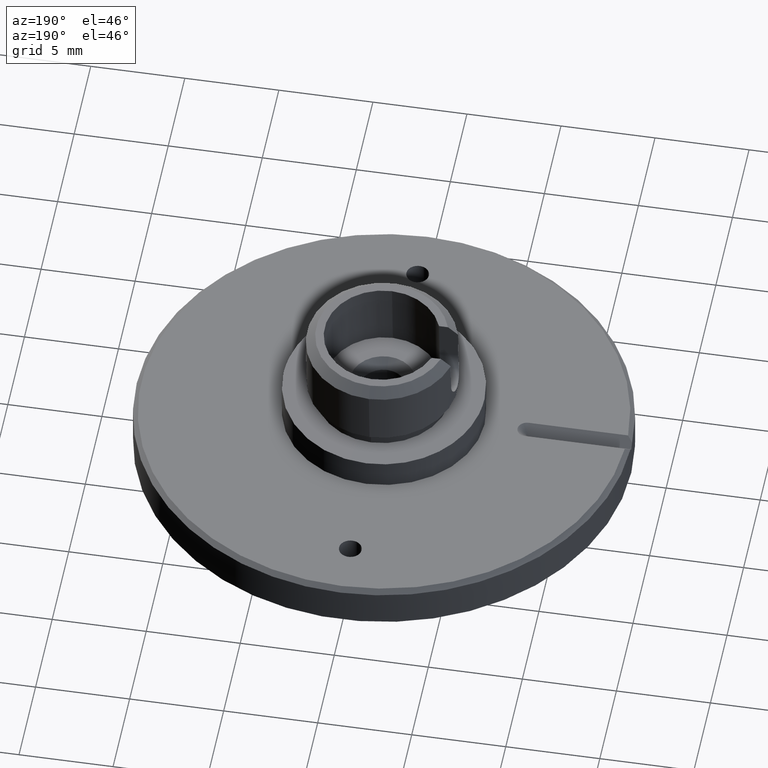
[diagram: clean part render]
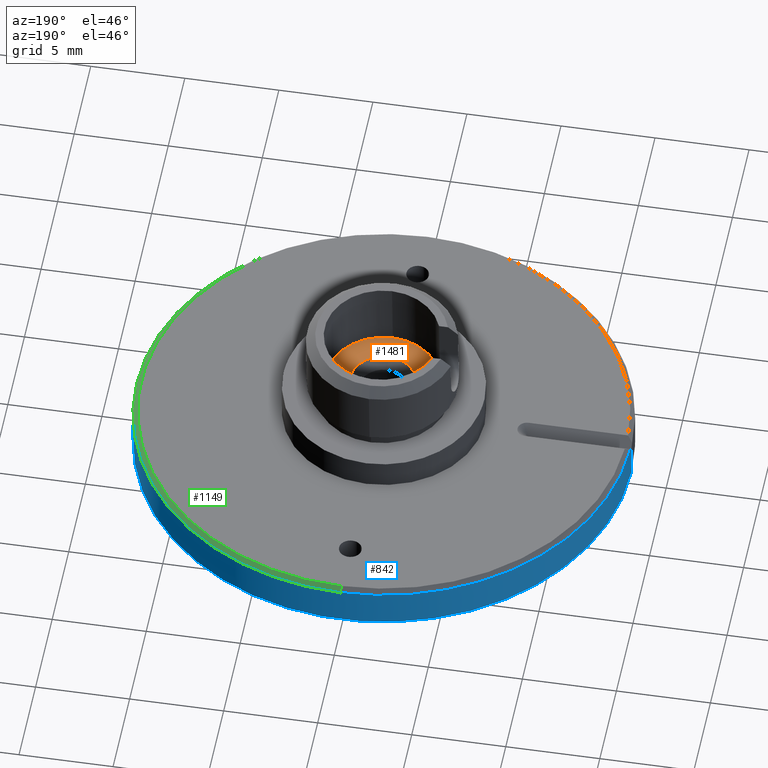
[diagram: same view with three faces highlighted in distinct colors, each labeled with its STEP entity id]
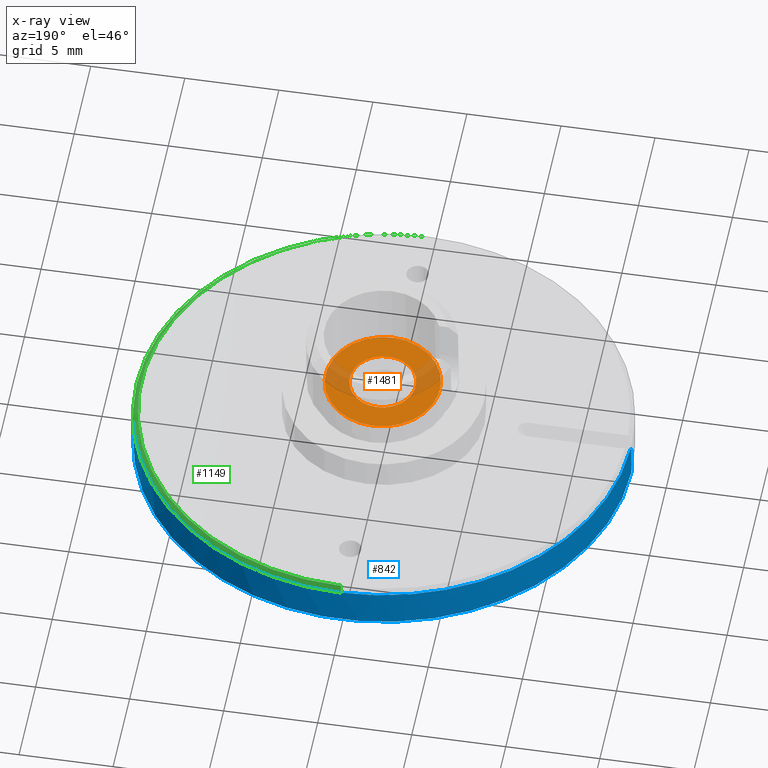
[diagram: x-ray of the same camera — body ghosted, the three highlighted faces saturated]
A machine part, auxiliary view with three faces highlighted in distinct colors.
The next image is the same camera in x-ray (body ghosted, the three faces saturated) — at least one of them is partly hidden behind the body in this view.
Their STEP definitions:

[orange] entity #1481 — the highlighted planar face has unit normal (-0, 0.0706, 0.9975).
#20 = CARTESIAN_POINT ( 'NONE',  ( -1.531478631540817406E-18, 0.3609151309933772422, 5.097397940602025557 ) ) ;
#79 = EDGE_CURVE ( 'NONE', #1616, #1191, #1095, .T. ) ;
#109 = CARTESIAN_POINT ( 'NONE',  ( 2.127817112517698005E-16, 2.106545024986783865, 4.973800715204018452 ) ) ;
#130 = CARTESIAN_POINT ( 'NONE',  ( -1.531478631540816058E-18, -1.384714763000028936, 5.220995166000033549 ) ) ;
#165 = DIRECTION ( 'NONE',  ( -0.000000000000000000, 0.07062698584061041784, 0.9975027964226818034 ) ) ;
#181 = AXIS2_PLACEMENT_3D ( 'NONE', #20, #1061, #1223 ) ;
#299 = FACE_BOUND ( 'NONE', #1338, .T. ) ;
#337 = CARTESIAN_POINT ( 'NONE',  ( 0.000000000000000000, -2.681468397756638478, 5.312810247982767464 ) ) ;
#466 = AXIS2_PLACEMENT_3D ( 'NONE', #1332, #1324, #776 ) ;
#470 = CIRCLE ( 'NONE', #1454, 1.750000000265576672 ) ;
#495 = CARTESIAN_POINT ( 'NONE',  ( -1.531478631540817406E-18, 0.3609151309933772422, 5.097397940602025557 ) ) ;
#577 = FACE_OUTER_BOUND ( 'NONE', #1478, .T. ) ;
#607 = EDGE_CURVE ( 'NONE', #1727, #737, #1123, .T. ) ;
#638 = DIRECTION ( 'NONE',  ( -3.062957264470169057E-18, 0.07062698593100009969, 0.9975027964162820338 ) ) ;
#702 = EDGE_CURVE ( 'NONE', #1191, #1616, #1399, .T. ) ;
#714 = DIRECTION ( 'NONE',  ( 0.000000000000000000, -0.9975027964226816923, 0.07062698584061040397 ) ) ;
#737 = VERTEX_POINT ( 'NONE', #130 ) ;
#741 = CARTESIAN_POINT ( 'NONE',  ( -3.086599999999999788, 3.439807262999999615, 4.879400686000000320 ) ) ;
#776 = DIRECTION ( 'NONE',  ( 0.000000000000000000, -0.9975027964162804794, 0.07062698593101955635 ) ) ;
#816 = ORIENTED_EDGE ( 'NONE', *, *, #607, .F. ) ;
#850 = PLANE ( 'NONE',  #1516 ) ;
#855 = EDGE_CURVE ( 'NONE', #737, #1727, #470, .T. ) ;
#871 = CARTESIAN_POINT ( 'NONE',  ( 0.000000000000000000, 0.3609151309940342722, 5.097397940915742609 ) ) ;
#1006 = AXIS2_PLACEMENT_3D ( 'NONE', #871, #1272, #1393 ) ;
#1028 = ORIENTED_EDGE ( 'NONE', *, *, #702, .T. ) ;
#1061 = DIRECTION ( 'NONE',  ( -3.062957264470169057E-18, 0.07062698593100009969, 0.9975027964162820338 ) ) ;
#1095 = CIRCLE ( 'NONE', #466, 3.049999999680218732 ) ;
#1123 = CIRCLE ( 'NONE', #181, 1.750000000265576672 ) ;
#1191 = VERTEX_POINT ( 'NONE', #1363 ) ;
#1223 = DIRECTION ( 'NONE',  ( 0.000000000000000000, -0.9975027964162818117, 0.07062698593100015521 ) ) ;
#1272 = DIRECTION ( 'NONE',  ( -0.000000000000000000, 0.07062698593101959799, 0.9975027964162804794 ) ) ;
#1324 = DIRECTION ( 'NONE',  ( -0.000000000000000000, 0.07062698593101959799, 0.9975027964162804794 ) ) ;
#1332 = CARTESIAN_POINT ( 'NONE',  ( 0.000000000000000000, 0.3609151309940342722, 5.097397940915742609 ) ) ;
#1338 = EDGE_LOOP ( 'NONE', ( #1738, #816 ) ) ;
#1363 = CARTESIAN_POINT ( 'NONE',  ( 3.735172737007807997E-16, 3.403298659744706800, 4.881985633848718642 ) ) ;
#1393 = DIRECTION ( 'NONE',  ( 0.000000000000000000, -0.9975027964162804794, 0.07062698593101955635 ) ) ;
#1399 = CIRCLE ( 'NONE', #1006, 3.049999999680218732 ) ;
#1446 = DIRECTION ( 'NONE',  ( 0.000000000000000000, -0.9975027964162818117, 0.07062698593100015521 ) ) ;
#1454 = AXIS2_PLACEMENT_3D ( 'NONE', #495, #638, #1446 ) ;
#1478 = EDGE_LOOP ( 'NONE', ( #1521, #1028 ) ) ;
#1481 = ADVANCED_FACE ( 'NONE', ( #299, #577 ), #850, .T. ) ;
#1516 = AXIS2_PLACEMENT_3D ( 'NONE', #741, #165, #714 ) ;
#1521 = ORIENTED_EDGE ( 'NONE', *, *, #79, .T. ) ;
#1616 = VERTEX_POINT ( 'NONE', #337 ) ;
#1727 = VERTEX_POINT ( 'NONE', #109 ) ;
#1738 = ORIENTED_EDGE ( 'NONE', *, *, #855, .F. ) ;

[blue] entity #842 — the highlighted cylindrical surface (partial cylindrical patch) has radius 13.15 mm, axis along (0, 0, -1).
#8 = CIRCLE ( 'NONE', #730, 13.15000000000000036 ) ;
#28 = CARTESIAN_POINT ( 'NONE',  ( 13.15000000000000036, 1.610410540878769328E-15, 2.250000000000000444 ) ) ;
#48 = DIRECTION ( 'NONE',  ( 0.000000000000000000, 0.000000000000000000, -1.000000000000000000 ) ) ;
#49 = CARTESIAN_POINT ( 'NONE',  ( -13.14999998098859635, 0.001000000000000066157, 2.000999999999999890 ) ) ;
#81 = FACE_OUTER_BOUND ( 'NONE', #260, .T. ) ;
#142 = CARTESIAN_POINT ( 'NONE',  ( -13.14999998098859635, 0.001000000000000066157, 2.000999999999999890 ) ) ;
#144 = CARTESIAN_POINT ( 'NONE',  ( 13.15000000000000036, 1.610410540878769328E-15, 2.250000000000000444 ) ) ;
#195 = CARTESIAN_POINT ( 'NONE',  ( -13.14762335940779536, 0.2499999983088841138, 2.250000000000000444 ) ) ;
#241 = CARTESIAN_POINT ( 'NONE',  ( 0.000000000000000000, 13.15000000000000036, 2.250000000000000444 ) ) ;
#260 = EDGE_LOOP ( 'NONE', ( #756, #810, #688, #612, #1096, #992, #642 ) ) ;
#270 = DIRECTION ( 'NONE',  ( -1.000000000000000000, 8.881784197001252323E-16, 0.000000000000000000 ) ) ;
#273 = EDGE_CURVE ( 'NONE', #1297, #1233, #8, .T. ) ;
#281 = CARTESIAN_POINT ( 'NONE',  ( -13.14920142517864399, 0.1670087404623048777, 2.167008740462303962 ) ) ;
#353 = DIRECTION ( 'NONE',  ( 1.000000000000000000, 0.000000000000000000, 2.094200394002419040E-15 ) ) ;
#386 = VERTEX_POINT ( 'NONE', #195 ) ;
#389 = CARTESIAN_POINT ( 'NONE',  ( -13.15000000000000036, 0.000000000000000000, 2.250000000000000444 ) ) ;
#399 = VERTEX_POINT ( 'NONE', #1396 ) ;
#410 = VERTEX_POINT ( 'NONE', #49 ) ;
#425 = DIRECTION ( 'NONE',  ( -0.000000000000000000, -0.000000000000000000, 1.000000000000000000 ) ) ;
#513 = DIRECTION ( 'NONE',  ( -1.000000000000000000, 0.000000000000000000, 0.000000000000000000 ) ) ;
#524 = DIRECTION ( 'NONE',  ( 0.000000000000000000, 0.000000000000000000, -1.000000000000000000 ) ) ;
#551 = CARTESIAN_POINT ( 'NONE',  ( -13.14999364971401974, 0.08400626043207895521, 2.084006260432079038 ) ) ;
#587 = AXIS2_PLACEMENT_3D ( 'NONE', #959, #1360, #270 ) ;
#612 = ORIENTED_EDGE ( 'NONE', *, *, #917, .F. ) ;
#615 = VECTOR ( 'NONE', #1695, 1000.000000000000000 ) ;
#631 = CYLINDRICAL_SURFACE ( 'NONE', #639, 13.15000000000000036 ) ;
#639 = AXIS2_PLACEMENT_3D ( 'NONE', #1194, #1176, #513 ) ;
#642 = ORIENTED_EDGE ( 'NONE', *, *, #1718, .F. ) ;
#668 = CARTESIAN_POINT ( 'NONE',  ( 0.000000000000000000, 0.000000000000000000, 2.250000000000000444 ) ) ;
#688 = ORIENTED_EDGE ( 'NONE', *, *, #1669, .T. ) ;
#727 =( BOUNDED_CURVE ( )  B_SPLINE_CURVE ( 3, ( #142, #551, #281, #1492 ),
 .UNSPECIFIED., .F., .T. ) 
 B_SPLINE_CURVE_WITH_KNOTS ( ( 4, 4 ),
 ( 1.570872372422291496, 1.589808878987811314 ),
 .UNSPECIFIED. ) 
 CURVE ( )  GEOMETRIC_REPRESENTATION_ITEM ( )  RATIONAL_B_SPLINE_CURVE ( ( 1.000000000000000000, 0.9999701176164996763, 0.9999701176164996763, 1.000000000000000000 ) ) 
 REPRESENTATION_ITEM ( '' )  );
#730 = AXIS2_PLACEMENT_3D ( 'NONE', #668, #425, #1504 ) ;
#756 = ORIENTED_EDGE ( 'NONE', *, *, #273, .F. ) ;
#763 = CARTESIAN_POINT ( 'NONE',  ( -13.15000000000000036, 0.000000000000000000, 2.000999999999999890 ) ) ;
#810 = ORIENTED_EDGE ( 'NONE', *, *, #1496, .T. ) ;
#842 = ADVANCED_FACE ( 'NONE', ( #81 ), #631, .T. ) ;
#917 = EDGE_CURVE ( 'NONE', #1419, #399, #1604, .T. ) ;
#957 = VECTOR ( 'NONE', #524, 1000.000000000000000 ) ;
#959 = CARTESIAN_POINT ( 'NONE',  ( 0.000000000000000000, 0.000000000000000000, 2.250000000000000444 ) ) ;
#992 = ORIENTED_EDGE ( 'NONE', *, *, #1726, .T. ) ;
#1096 = ORIENTED_EDGE ( 'NONE', *, *, #1539, .F. ) ;
#1129 = CIRCLE ( 'NONE', #587, 13.15000000000000036 ) ;
#1161 = LINE ( 'NONE', #763, #615 ) ;
#1176 = DIRECTION ( 'NONE',  ( 0.000000000000000000, 0.000000000000000000, -1.000000000000000000 ) ) ;
#1194 = CARTESIAN_POINT ( 'NONE',  ( 0.000000000000000000, 0.000000000000000000, 2.250000000000000444 ) ) ;
#1203 = VERTEX_POINT ( 'NONE', #1371 ) ;
#1233 = VERTEX_POINT ( 'NONE', #241 ) ;
#1255 = LINE ( 'NONE', #28, #1565 ) ;
#1296 = CIRCLE ( 'NONE', #1600, 13.15000000000000036 ) ;
#1297 = VERTEX_POINT ( 'NONE', #144 ) ;
#1360 = DIRECTION ( 'NONE',  ( -0.000000000000000000, -0.000000000000000000, 1.000000000000000000 ) ) ;
#1371 = CARTESIAN_POINT ( 'NONE',  ( 13.15000000000000036, 1.610410540878769328E-15, 0.2499999999999724665 ) ) ;
#1396 = CARTESIAN_POINT ( 'NONE',  ( -13.15000000000000036, 0.000000000000000000, 0.2499999999999724665 ) ) ;
#1419 = VERTEX_POINT ( 'NONE', #1534 ) ;
#1492 = CARTESIAN_POINT ( 'NONE',  ( -13.14762335940779536, 0.2499999983088841138, 2.250000000000000444 ) ) ;
#1496 = EDGE_CURVE ( 'NONE', #1297, #1203, #1255, .T. ) ;
#1504 = DIRECTION ( 'NONE',  ( -1.000000000000000000, 0.000000000000000000, 0.000000000000000000 ) ) ;
#1534 = CARTESIAN_POINT ( 'NONE',  ( -13.15000000000000036, 0.000000000000000000, 2.000999999999999890 ) ) ;
#1539 = EDGE_CURVE ( 'NONE', #410, #1419, #1161, .T. ) ;
#1556 = CARTESIAN_POINT ( 'NONE',  ( 0.000000000000000000, 0.000000000000000000, 0.2499999999999724665 ) ) ;
#1565 = VECTOR ( 'NONE', #48, 1000.000000000000000 ) ;
#1566 = DIRECTION ( 'NONE',  ( 0.000000000000000000, 0.000000000000000000, 1.000000000000000000 ) ) ;
#1600 = AXIS2_PLACEMENT_3D ( 'NONE', #1556, #1566, #353 ) ;
#1604 = LINE ( 'NONE', #389, #957 ) ;
#1669 = EDGE_CURVE ( 'NONE', #1203, #399, #1296, .T. ) ;
#1695 = DIRECTION ( 'NONE',  ( -0.000000000000000000, -1.000000000000000000, -0.000000000000000000 ) ) ;
#1718 = EDGE_CURVE ( 'NONE', #1233, #386, #1129, .T. ) ;
#1726 = EDGE_CURVE ( 'NONE', #410, #386, #727, .T. ) ;

[green] entity #1149 — the highlighted conical surface has half-angle 45 deg.
#8 = CIRCLE ( 'NONE', #730, 13.15000000000000036 ) ;
#110 = CARTESIAN_POINT ( 'NONE',  ( 1.595102455969295263E-15, -12.90000000000000036, 2.500000000000000444 ) ) ;
#144 = CARTESIAN_POINT ( 'NONE',  ( 13.15000000000000036, 1.610410540878769328E-15, 2.250000000000000444 ) ) ;
#175 = ORIENTED_EDGE ( 'NONE', *, *, #720, .T. ) ;
#207 = CONICAL_SURFACE ( 'NONE', #1655, 12.90000000000000036, 0.7853981633974491672 ) ;
#235 = VECTOR ( 'NONE', #1357, 999.9999999999998863 ) ;
#241 = CARTESIAN_POINT ( 'NONE',  ( 0.000000000000000000, 13.15000000000000036, 2.250000000000000444 ) ) ;
#273 = EDGE_CURVE ( 'NONE', #1297, #1233, #8, .T. ) ;
#304 = VECTOR ( 'NONE', #488, 999.9999999999998863 ) ;
#320 = CARTESIAN_POINT ( 'NONE',  ( 0.000000000000000000, 0.000000000000000000, 2.250000000000000444 ) ) ;
#425 = DIRECTION ( 'NONE',  ( -0.000000000000000000, -0.000000000000000000, 1.000000000000000000 ) ) ;
#477 = DIRECTION ( 'NONE',  ( 0.000000000000000000, -1.680933600752720265E-17, -1.000000000000000000 ) ) ;
#488 = DIRECTION ( 'NONE',  ( 0.000000000000000000, 0.7071067811865482389, -0.7071067811865469066 ) ) ;
#534 = CARTESIAN_POINT ( 'NONE',  ( 0.000000000000000000, 12.90000000000000036, 2.499999999999999556 ) ) ;
#582 = VERTEX_POINT ( 'NONE', #534 ) ;
#588 = VERTEX_POINT ( 'NONE', #110 ) ;
#613 = CARTESIAN_POINT ( 'NONE',  ( 0.000000000000000000, 0.000000000000000000, 2.500000000000000000 ) ) ;
#668 = CARTESIAN_POINT ( 'NONE',  ( 0.000000000000000000, 0.000000000000000000, 2.250000000000000444 ) ) ;
#709 = ORIENTED_EDGE ( 'NONE', *, *, #1574, .F. ) ;
#720 = EDGE_CURVE ( 'NONE', #588, #1485, #1219, .T. ) ;
#730 = AXIS2_PLACEMENT_3D ( 'NONE', #668, #425, #1504 ) ;
#767 = FACE_OUTER_BOUND ( 'NONE', #1345, .T. ) ;
#892 = LINE ( 'NONE', #1170, #304 ) ;
#950 = ORIENTED_EDGE ( 'NONE', *, *, #1455, .T. ) ;
#994 = DIRECTION ( 'NONE',  ( -0.000000000000000000, -0.000000000000000000, 1.000000000000000000 ) ) ;
#1021 = DIRECTION ( 'NONE',  ( 0.000000000000000000, 1.000000000000000000, -3.361867201505439914E-17 ) ) ;
#1111 = DIRECTION ( 'NONE',  ( -1.000000000000000000, 0.000000000000000000, 0.000000000000000000 ) ) ;
#1149 = ADVANCED_FACE ( 'NONE', ( #767 ), #207, .T. ) ;
#1156 = CIRCLE ( 'NONE', #1220, 13.15000000000000036 ) ;
#1170 = CARTESIAN_POINT ( 'NONE',  ( 0.000000000000000000, 12.90000000000000036, 2.499999999999999556 ) ) ;
#1219 = LINE ( 'NONE', #1744, #235 ) ;
#1220 = AXIS2_PLACEMENT_3D ( 'NONE', #320, #994, #1111 ) ;
#1233 = VERTEX_POINT ( 'NONE', #241 ) ;
#1250 = DIRECTION ( 'NONE',  ( -0.000000000000000000, 1.680933600752720265E-17, 1.000000000000000000 ) ) ;
#1262 = CARTESIAN_POINT ( 'NONE',  ( 0.000000000000000000, 0.000000000000000000, 2.500000000000000000 ) ) ;
#1273 = CARTESIAN_POINT ( 'NONE',  ( 1.610410540878769525E-15, -13.15000000000000036, 2.250000000000000444 ) ) ;
#1297 = VERTEX_POINT ( 'NONE', #144 ) ;
#1323 = AXIS2_PLACEMENT_3D ( 'NONE', #1262, #1250, #1519 ) ;
#1345 = EDGE_LOOP ( 'NONE', ( #1456, #175, #950, #1440, #709 ) ) ;
#1357 = DIRECTION ( 'NONE',  ( 8.659560562354941486E-17, -0.7071067811865482389, -0.7071067811865469066 ) ) ;
#1404 = EDGE_CURVE ( 'NONE', #588, #582, #1658, .T. ) ;
#1440 = ORIENTED_EDGE ( 'NONE', *, *, #273, .T. ) ;
#1455 = EDGE_CURVE ( 'NONE', #1485, #1297, #1156, .T. ) ;
#1456 = ORIENTED_EDGE ( 'NONE', *, *, #1404, .F. ) ;
#1485 = VERTEX_POINT ( 'NONE', #1273 ) ;
#1504 = DIRECTION ( 'NONE',  ( -1.000000000000000000, 0.000000000000000000, 0.000000000000000000 ) ) ;
#1519 = DIRECTION ( 'NONE',  ( 0.000000000000000000, 1.000000000000000000, -3.361867201505439914E-17 ) ) ;
#1574 = EDGE_CURVE ( 'NONE', #582, #1233, #892, .T. ) ;
#1655 = AXIS2_PLACEMENT_3D ( 'NONE', #613, #477, #1021 ) ;
#1658 = CIRCLE ( 'NONE', #1323, 12.90000000000000036 ) ;
#1744 = CARTESIAN_POINT ( 'NONE',  ( 1.579794370900085738E-15, -12.90000000000000036, 2.500000000000000444 ) ) ;